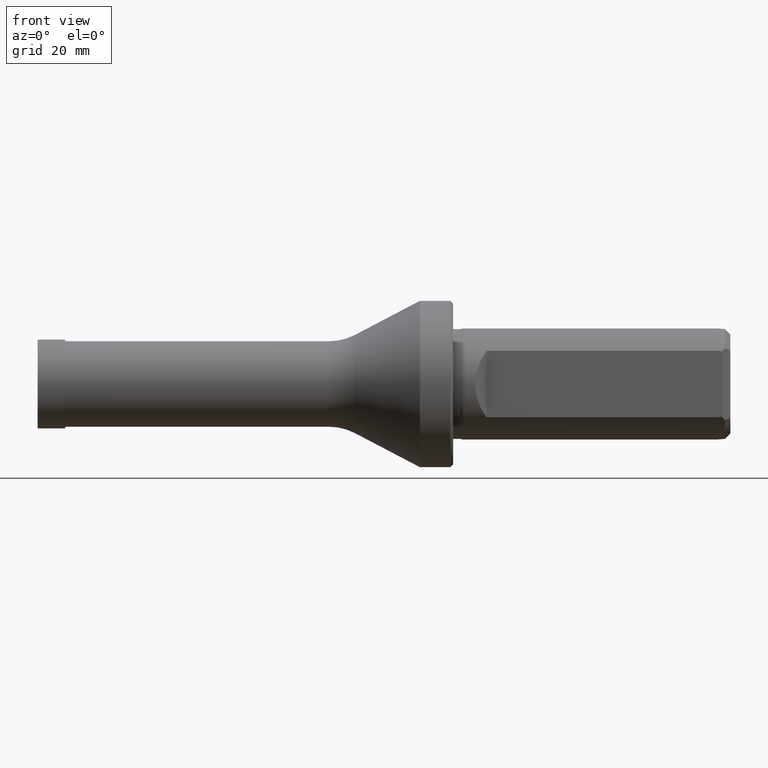
[diagram: clean part render]
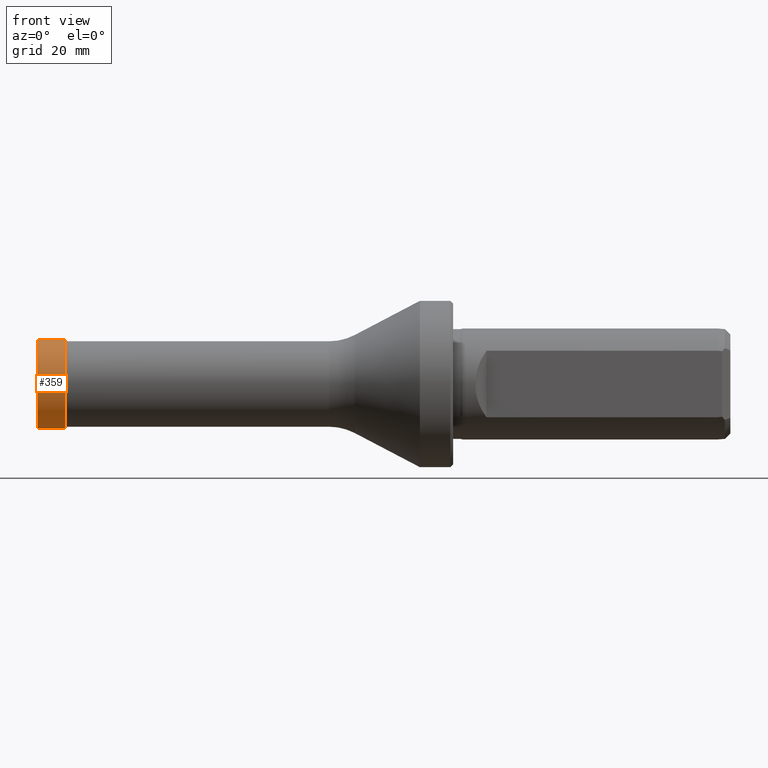
[diagram: same view with one face highlighted and labeled with its STEP entity id]
A machine part, front view. The second image highlights one B-rep face of the part: STEP entity #359.
In plain terms, the highlighted cylindrical surface (partial cylindrical patch) has radius 8 mm, axis along (-1, 0, 0).
Its self-contained STEP definition (entity closure, byte-faithful):
#14 = ORIENTED_EDGE ( 'NONE', *, *, #831, .F. ) ;
#65 = VERTEX_POINT ( 'NONE', #437 ) ;
#134 = LINE ( 'NONE', #912, #833 ) ;
#169 = DIRECTION ( 'NONE',  ( 0.0000000000000000000, 0.0000000000000000000, 1.000000000000000000 ) ) ;
#182 = AXIS2_PLACEMENT_3D ( 'NONE', #570, #373, #662 ) ;
#292 = EDGE_LOOP ( 'NONE', ( #1142, #568, #561, #14 ) ) ;
#295 = DIRECTION ( 'NONE',  ( 0.0000000000000000000, 0.0000000000000000000, 1.000000000000000000 ) ) ;
#312 = CARTESIAN_POINT ( 'NONE',  ( 4.500000000000000000, 0.0000000000000000000, 8.000000000000000000 ) ) ;
#328 = FACE_OUTER_BOUND ( 'NONE', #292, .T. ) ;
#329 = AXIS2_PLACEMENT_3D ( 'NONE', #737, #830, #169 ) ;
#359 = ADVANCED_FACE ( 'NONE', ( #328 ), #972, .T. ) ;
#373 = DIRECTION ( 'NONE',  ( -1.000000000000000000, 0.0000000000000000000, 0.0000000000000000000 ) ) ;
#437 = CARTESIAN_POINT ( 'NONE',  ( 4.500000000000000000, 0.0000000000000000000, 8.000000000000000000 ) ) ;
#461 = LINE ( 'NONE', #312, #997 ) ;
#492 = AXIS2_PLACEMENT_3D ( 'NONE', #893, #883, #295 ) ;
#507 = EDGE_CURVE ( 'NONE', #648, #65, #1024, .T. ) ;
#512 = DIRECTION ( 'NONE',  ( -1.000000000000000000, 0.0000000000000000000, 0.0000000000000000000 ) ) ;
#561 = ORIENTED_EDGE ( 'NONE', *, *, #1154, .T. ) ;
#568 = ORIENTED_EDGE ( 'NONE', *, *, #507, .T. ) ;
#570 = CARTESIAN_POINT ( 'NONE',  ( 4.500000000000000000, 0.0000000000000000000, 0.0000000000000000000 ) ) ;
#586 = CARTESIAN_POINT ( 'NONE',  ( -0.5000000000000002200, 9.797174393178825700E-016, -8.000000000000000000 ) ) ;
#596 = CARTESIAN_POINT ( 'NONE',  ( -0.5000000000000002200, 0.0000000000000000000, 8.000000000000000000 ) ) ;
#623 = VERTEX_POINT ( 'NONE', #586 ) ;
#635 = VERTEX_POINT ( 'NONE', #596 ) ;
#648 = VERTEX_POINT ( 'NONE', #1053 ) ;
#662 = DIRECTION ( 'NONE',  ( 0.0000000000000000000, 0.0000000000000000000, 1.000000000000000000 ) ) ;
#737 = CARTESIAN_POINT ( 'NONE',  ( -0.5000000000000002200, 0.0000000000000000000, 0.0000000000000000000 ) ) ;
#830 = DIRECTION ( 'NONE',  ( -1.000000000000000000, 0.0000000000000000000, 0.0000000000000000000 ) ) ;
#831 = EDGE_CURVE ( 'NONE', #623, #635, #841, .T. ) ;
#833 = VECTOR ( 'NONE', #1095, 1000.000000000000000 ) ;
#841 = CIRCLE ( 'NONE', #329, 8.000000000000000000 ) ;
#883 = DIRECTION ( 'NONE',  ( -1.000000000000000000, 0.0000000000000000000, 0.0000000000000000000 ) ) ;
#893 = CARTESIAN_POINT ( 'NONE',  ( 4.500000000000000000, 0.0000000000000000000, 0.0000000000000000000 ) ) ;
#912 = CARTESIAN_POINT ( 'NONE',  ( 4.500000000000000000, 9.797174393178825700E-016, -8.000000000000000000 ) ) ;
#939 = EDGE_CURVE ( 'NONE', #648, #623, #134, .T. ) ;
#972 = CYLINDRICAL_SURFACE ( 'NONE', #182, 8.000000000000000000 ) ;
#997 = VECTOR ( 'NONE', #512, 1000.000000000000000 ) ;
#1024 = CIRCLE ( 'NONE', #492, 8.000000000000000000 ) ;
#1053 = CARTESIAN_POINT ( 'NONE',  ( 4.500000000000000000, 9.797174393178825700E-016, -8.000000000000000000 ) ) ;
#1095 = DIRECTION ( 'NONE',  ( -1.000000000000000000, 0.0000000000000000000, 0.0000000000000000000 ) ) ;
#1142 = ORIENTED_EDGE ( 'NONE', *, *, #939, .F. ) ;
#1154 = EDGE_CURVE ( 'NONE', #65, #635, #461, .T. ) ;